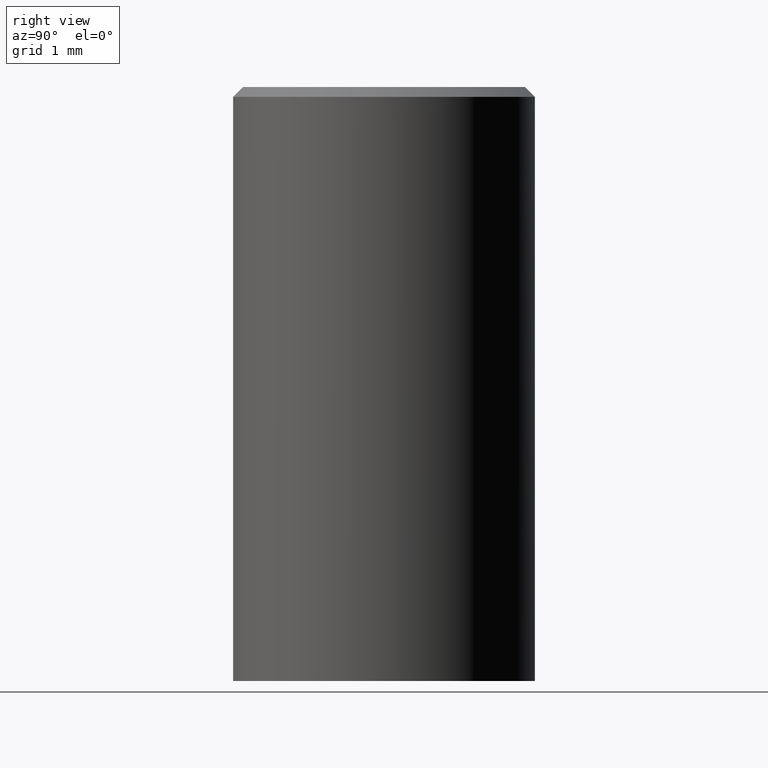
[diagram: clean part render]
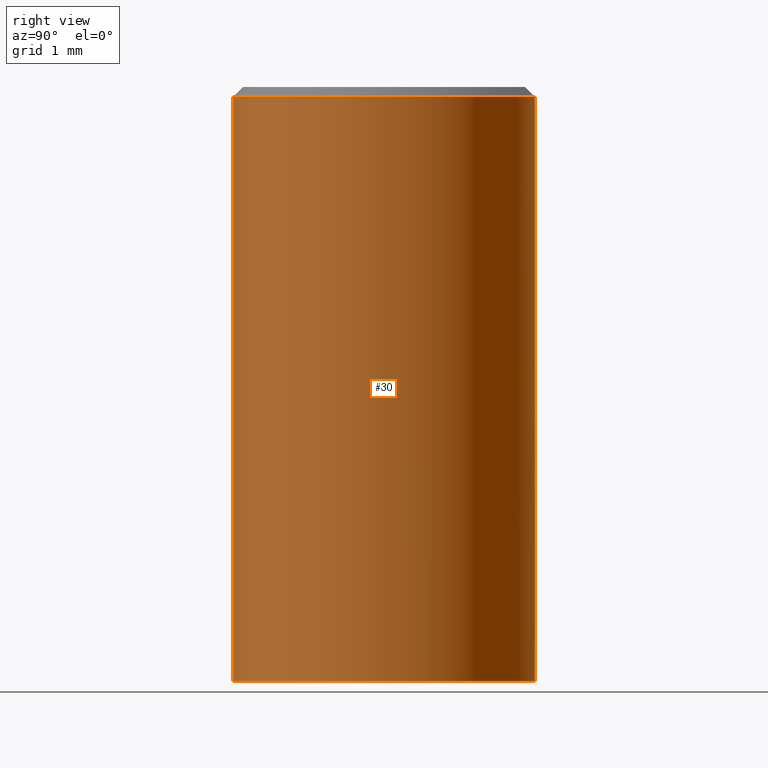
[diagram: same view with one face highlighted and labeled with its STEP entity id]
A machine part, right view. The second image highlights one B-rep face of the part: STEP entity #30.
In plain terms, the highlighted cylindrical surface (partial cylindrical patch) has radius 1.524 mm, axis along (0, 0, -1).
Its self-contained STEP definition (entity closure, byte-faithful):
#30=ADVANCED_FACE('',(#38),#86,.T.);
#38=FACE_OUTER_BOUND('',#48,.F.);
#48=EDGE_LOOP('',(#71,#72,#73,#74));
#71=ORIENTED_EDGE('',*,*,#116,.F.);
#72=ORIENTED_EDGE('',*,*,#108,.T.);
#73=ORIENTED_EDGE('',*,*,#117,.T.);
#74=ORIENTED_EDGE('',*,*,#120,.T.);
#86=CYLINDRICAL_SURFACE('',#187,1.524);
#97=LINE('',#263,#103);
#98=LINE('',#264,#104);
#103=VECTOR('',#212,5.9);
#104=VECTOR('',#213,5.9);
#108=EDGE_CURVE('',#140,#139,#124,.T.);
#116=EDGE_CURVE('',#140,#134,#97,.T.);
#117=EDGE_CURVE('',#139,#133,#98,.T.);
#120=EDGE_CURVE('',#133,#134,#132,.T.);
#124=CIRCLE('',#173,1.524);
#132=CIRCLE('',#181,1.524);
#133=VERTEX_POINT('',#244);
#134=VERTEX_POINT('',#245);
#139=VERTEX_POINT('',#250);
#140=VERTEX_POINT('',#251);
#173=AXIS2_PLACEMENT_3D('',#255,#198,#199);
#181=AXIS2_PLACEMENT_3D('',#267,#218,#219);
#187=AXIS2_PLACEMENT_3D('',#275,#232,#233);
#198=DIRECTION('',(0.,0.,1.));
#199=DIRECTION('',(0.,-1.,0.));
#212=DIRECTION('',(0.,0.,-1.));
#213=DIRECTION('',(0.,0.,-1.));
#218=DIRECTION('',(0.,0.,-1.));
#219=DIRECTION('',(0.,1.,0.));
#232=DIRECTION('',(0.,0.,-1.));
#233=DIRECTION('',(0.,1.,0.));
#244=CARTESIAN_POINT('',(0.,1.524,-6.));
#245=CARTESIAN_POINT('',(0.,-1.524,-6.));
#250=CARTESIAN_POINT('',(0.,1.524,-0.1));
#251=CARTESIAN_POINT('',(0.,-1.524,-0.1));
#255=CARTESIAN_POINT('',(0.,0.,-0.1));
#263=CARTESIAN_POINT('',(0.,-1.524,-0.1));
#264=CARTESIAN_POINT('',(0.,1.524,-0.1));
#267=CARTESIAN_POINT('',(0.,0.,-6.));
#275=CARTESIAN_POINT('',(0.,0.,0.));